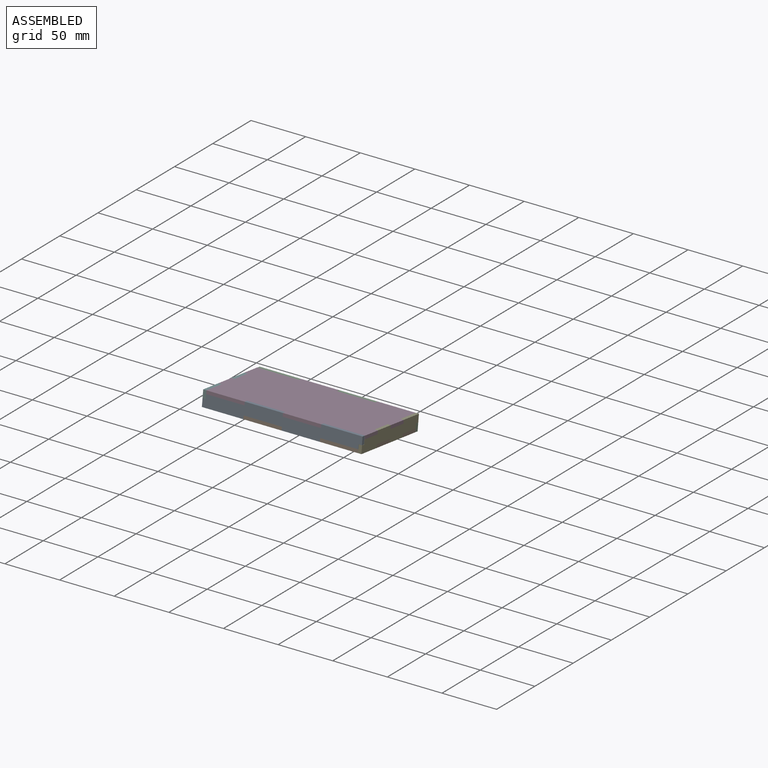
[diagram: assembled view]
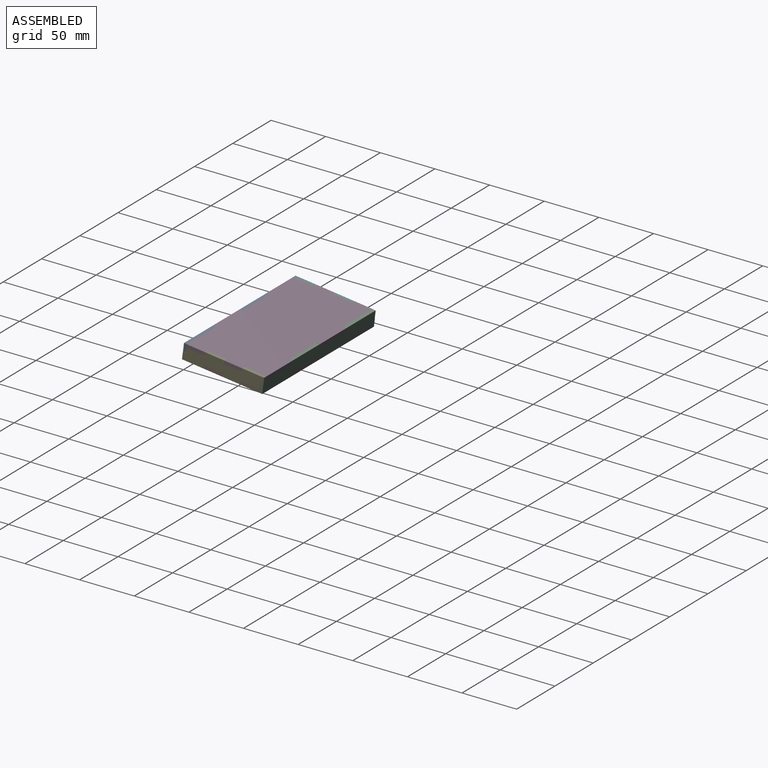
[diagram: assembled view, second angle]
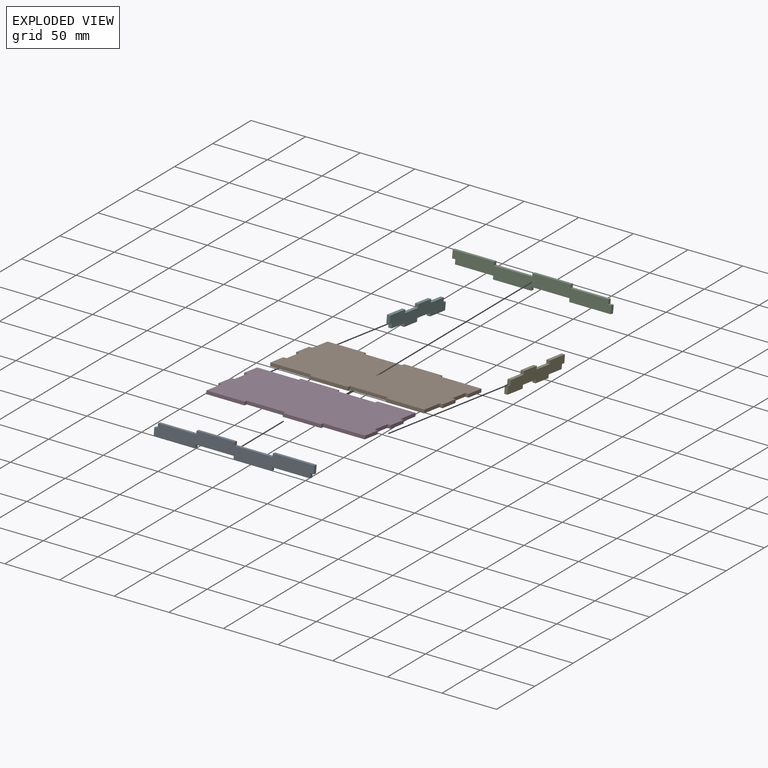
[diagram: exploded view]
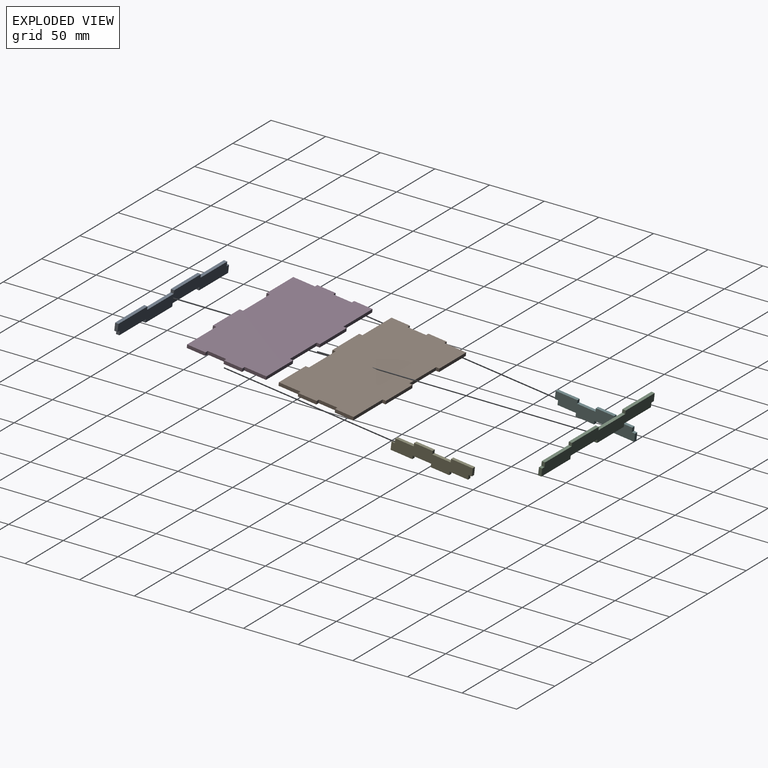
[diagram: exploded view, second angle]
ASSEMBLY  parts=6 mates=5
PART A: 22 faces, bbox 145.8x3x14 mm
  f0: plane 34.83x3mm, normal (0,0,-1), area 104.5mm2, adj f1,f19,f20,f21
  f1: plane 3x3mm, normal (-1,0,0), area 9mm2, adj f0,f2,f20,f21
  f2: plane 38x3mm, normal (0,0,-1), area 114mm2, adj f1,f3,f20,f21
  f3: plane 7x3mm, normal (1,0,0), area 21mm2, adj f2,f4,f20,f21
  f4: plane 3x3mm, normal (0,0,1), area 9mm2, adj f3,f5,f20,f21
  f5: plane 4x3mm, normal (1,0,0), area 12mm2, adj f4,f6,f20,f21
  f6: plane 34.83x3mm, normal (0,0,1), area 104.5mm2, adj f5,f7,f20,f21
  f7: plane 3x3mm, normal (1,0,0), area 9mm2, adj f6,f8,f20,f21
  f8: plane 35x3mm, normal (0,0,1), area 105mm2, adj f7,f9,f20,f21
  f9: plane 3x3mm, normal (-1,0,0), area 9mm2, adj f8,f10,f20,f21
  f10: plane 35x3mm, normal (0,0,1), area 105mm2, adj f9,f11,f20,f21
  f11: plane 3x3mm, normal (1,0,0), area 9mm2, adj f10,f12,f20,f21
  f12: plane 38x3mm, normal (0,0,1), area 114mm2, adj f11,f13,f20,f21
  f13: plane 7x3mm, normal (-1,0,0), area 21mm2, adj f12,f14,f20,f21
  f14: plane 3x3mm, normal (0,0,-1), area 9mm2, adj f13,f15,f20,f21
  f15: plane 4x3mm, normal (-1,0,0), area 12mm2, adj f14,f16,f20,f21
  f16: plane 35x3mm, normal (0,0,-1), area 105mm2, adj f15,f17,f20,f21
  f17: plane 3x3mm, normal (-1,0,0), area 9mm2, adj f16,f18,f20,f21
  f18: plane 35x3mm, normal (0,0,-1), area 105mm2, adj f17,f19,f20,f21
  f19: plane 3x3mm, normal (1,0,0), area 9mm2, adj f0,f18,f20,f21
  f20: plane 145.83x14mm, normal (0,1,0), area 1580.6mm2, adj f0,f1,f2,f3,f4,f5,f6,f7
  f21: plane 145.83x14mm, normal (0,-1,0), area 1580.6mm2, adj f0,f1,f2,f3,f4,f5,f6,f7
PART B: 30 faces, bbox 146x74x3 mm
  f0: plane 3x3mm, normal (1,0,0), area 9mm2, adj f1,f27,f28,f29
  f1: plane 35x3mm, normal (0,1,0), area 105mm2, adj f0,f2,f28,f29
  f2: plane 3x3mm, normal (-1,0,0), area 9mm2, adj f1,f3,f28,f29
  f3: plane 35x3mm, normal (0,1,0), area 105mm2, adj f2,f4,f28,f29
  f4: plane 3x3mm, normal (1,0,0), area 9mm2, adj f3,f5,f28,f29
  f5: plane 35x3mm, normal (0,1,0), area 105mm2, adj f4,f6,f28,f29
  f6: plane 20x3mm, normal (-1,0,0), area 60mm2, adj f5,f7,f28,f29
  f7: plane 3x3mm, normal (0,1,0), area 9mm2, adj f6,f8,f28,f29
  f8: plane 17x3mm, normal (-1,0,0), area 51mm2, adj f7,f9,f28,f29
  f9: plane 3x3mm, normal (0,-1,0), area 9mm2, adj f8,f10,f28,f29
  f10: plane 17x3mm, normal (-1,0,0), area 51mm2, adj f9,f11,f28,f29
  f11: plane 3x3mm, normal (0,1,0), area 9mm2, adj f10,f12,f28,f29
  f12: plane 17x3mm, normal (-1,0,0), area 51mm2, adj f11,f13,f28,f29
  f13: plane 38x3mm, normal (0,-1,0), area 114mm2, adj f12,f14,f28,f29
  f14: plane 3x3mm, normal (-1,0,0), area 9mm2, adj f13,f15,f28,f29
  f15: plane 35x3mm, normal (0,-1,0), area 105mm2, adj f14,f16,f28,f29
  f16: plane 3x3mm, normal (1,0,0), area 9mm2, adj f15,f17,f28,f29
  f17: plane 35x3mm, normal (0,-1,0), area 105mm2, adj f16,f18,f28,f29
  f18: plane 3x3mm, normal (-1,0,0), area 9mm2, adj f17,f19,f28,f29
  f19: plane 35x3mm, normal (0,-1,0), area 105mm2, adj f18,f20,f28,f29
  f20: plane 20x3mm, normal (1,0,0), area 60mm2, adj f19,f21,f28,f29
  f21: plane 3x3mm, normal (0,-1,0), area 9mm2, adj f20,f22,f28,f29
  f22: plane 17x3mm, normal (1,0,0), area 51mm2, adj f21,f23,f28,f29
  f23: plane 3x3mm, normal (0,1,0), area 9mm2, adj f22,f24,f28,f29
  f24: plane 17x3mm, normal (1,0,0), area 51mm2, adj f23,f25,f28,f29
  f25: plane 3x3mm, normal (0,-1,0), area 9mm2, adj f24,f26,f28,f29
  f26: plane 17x3mm, normal (1,0,0), area 51mm2, adj f25,f27,f28,f29
  f27: plane 38x3mm, normal (0,1,0), area 114mm2, adj f0,f26,f28,f29
  f28: plane 146x74mm, normal (0,0,1), area 10144mm2, adj f0,f1,f2,f3,f4,f5,f6,f7
  f29: plane 146x74mm, normal (0,0,-1), area 10144mm2, adj f0,f1,f2,f3,f4,f5,f6,f7
PART C: same geometry as A
PART D: same geometry as B
PART E: 22 faces, bbox 3x74x14 mm
  f0: plane 3x3mm, normal (0,-1,0), area 9mm2, adj f1,f19,f20,f21
  f1: plane 17x3mm, normal (0,0,-1), area 51mm2, adj f0,f2,f20,f21
  f2: plane 3x3mm, normal (0,1,0), area 9mm2, adj f1,f3,f20,f21
  f3: plane 20x3mm, normal (0,0,-1), area 60mm2, adj f2,f4,f20,f21
  f4: plane 7x3mm, normal (0,-1,0), area 21mm2, adj f3,f5,f20,f21
  f5: plane 3x3mm, normal (0,0,1), area 9mm2, adj f4,f6,f20,f21
  f6: plane 4x3mm, normal (0,-1,0), area 12mm2, adj f5,f7,f20,f21
  f7: plane 17x3mm, normal (0,0,1), area 51mm2, adj f6,f8,f20,f21
  f8: plane 3x3mm, normal (0,-1,0), area 9mm2, adj f7,f9,f20,f21
  f9: plane 17x3mm, normal (0,0,1), area 51mm2, adj f8,f10,f20,f21
  f10: plane 3x3mm, normal (0,1,0), area 9mm2, adj f9,f11,f20,f21
  f11: plane 17x3mm, normal (0,0,1), area 51mm2, adj f10,f12,f20,f21
  f12: plane 3x3mm, normal (0,-1,0), area 9mm2, adj f11,f13,f20,f21
  f13: plane 20x3mm, normal (0,0,1), area 60mm2, adj f12,f14,f20,f21
  f14: plane 7x3mm, normal (0,1,0), area 21mm2, adj f13,f15,f20,f21
  f15: plane 3x3mm, normal (0,0,-1), area 9mm2, adj f14,f16,f20,f21
  f16: plane 4x3mm, normal (0,1,0), area 12mm2, adj f15,f17,f20,f21
  f17: plane 17x3mm, normal (0,0,-1), area 51mm2, adj f16,f18,f20,f21
  f18: plane 3x3mm, normal (0,1,0), area 9mm2, adj f17,f19,f20,f21
  f19: plane 17x3mm, normal (0,0,-1), area 51mm2, adj f0,f18,f20,f21
  f20: plane 74x14mm, normal (1,0,0), area 790mm2, adj f0,f1,f2,f3,f4,f5,f6,f7
  f21: plane 74x14mm, normal (-1,0,0), area 790mm2, adj f0,f1,f2,f3,f4,f5,f6,f7
PART F: same geometry as E
PLACE A rot(axis=(1,0,0),172.9deg) t=(35.49,-93.78,-52.63)mm
PLACE B rot(axis=(-1,0,0),7.1deg) t=(35.49,-23.69,-64.39)mm
PLACE C rot(axis=(-1,0,0),7.1deg) t=(35.67,48.12,-62.25)mm
PLACE D rot(axis=(1,0,0),172.9deg) t=(35.49,-21.96,-50.5)mm
PLACE E rot(axis=(-1,0,0),7.1deg) t=(178.49,-22.33,-53.47)mm
PLACE F rot(axis=(0,0.06,1),180deg) t=(-107.51,-22.33,-53.47)mm
MATE fastened B.f0 <-> C.f1  axis (1,0,0) through (70.49,11.72,-67.29)mm
MATE fastened B.f21 <-> E.f2  axis (0,-0.99,0.12) through (106.99,-40.38,-60.8)mm
MATE fastened E.f8 <-> D.f25  axis (0,-0.99,0.12) through (106.99,-39.02,-49.88)mm
MATE fastened D.f9 <-> F.f10  axis (0,0.99,-0.12) through (-36.01,-22.15,-51.99)mm
MATE fastened A.f17 <-> D.f4  axis (-1,0,0) through (0.49,-57.38,-47.6)mm
